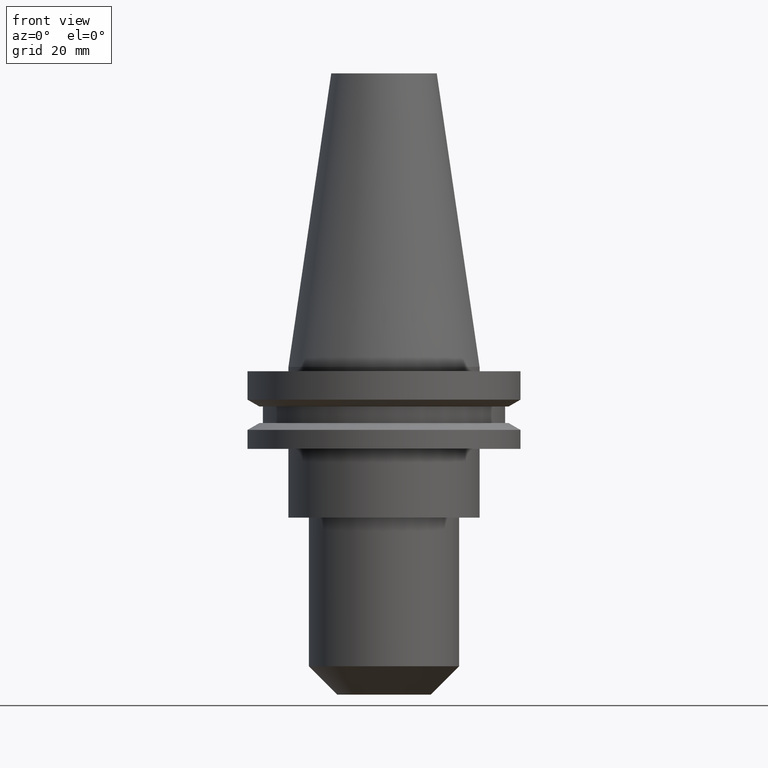
[diagram: clean part render]
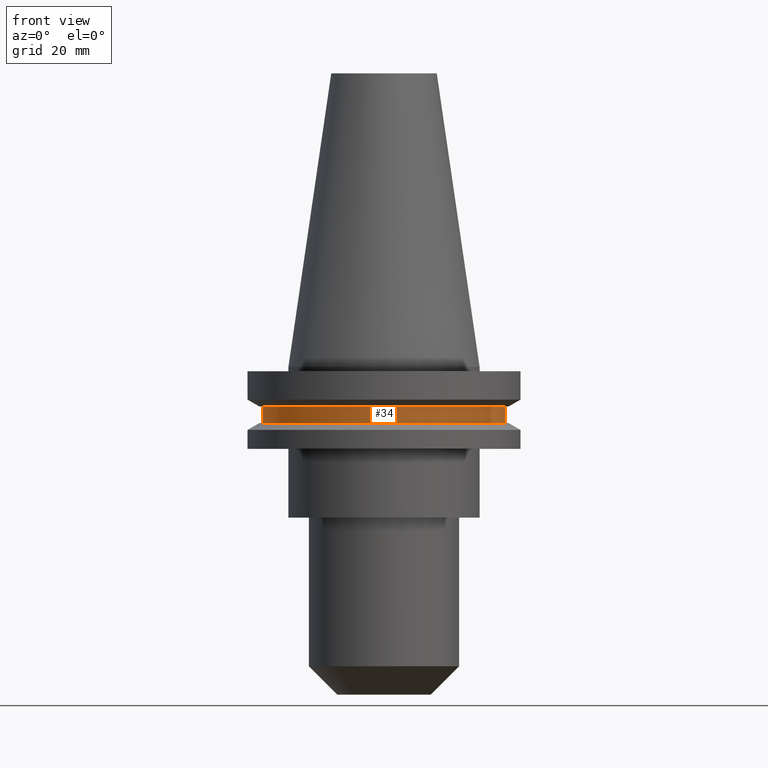
[diagram: same view with one face highlighted and labeled with its STEP entity id]
A machine part, front view. The second image highlights one B-rep face of the part: STEP entity #34.
In plain terms, the highlighted cylindrical surface (partial cylindrical patch) has radius 28.18 mm, axis along (-0, -0, 1).
Its self-contained STEP definition (entity closure, byte-faithful):
#3 = CYLINDRICAL_SURFACE ( 'NONE', #479, 28.17999999999999972 ) ;
#6 = CARTESIAN_POINT ( 'NONE',  ( 0.000000000000000000, 0.000000000000000000, 68.25000000000000000 ) ) ;
#23 = DIRECTION ( 'NONE',  ( -0.000000000000000000, -0.000000000000000000, 1.000000000000000000 ) ) ;
#28 = CARTESIAN_POINT ( 'NONE',  ( 28.17999999999999972, 0.000000000000000000, 68.25000000000000000 ) ) ;
#34 = ADVANCED_FACE ( 'NONE', ( #733 ), #3, .T. ) ;
#39 = VECTOR ( 'NONE', #23, 1000.000000000000000 ) ;
#40 = VERTEX_POINT ( 'NONE', #665 ) ;
#50 = VERTEX_POINT ( 'NONE', #527 ) ;
#78 = DIRECTION ( 'NONE',  ( 1.000000000000000000, 0.000000000000000000, 0.000000000000000000 ) ) ;
#79 = DIRECTION ( 'NONE',  ( 1.000000000000000000, 0.000000000000000000, 0.000000000000000000 ) ) ;
#134 = ORIENTED_EDGE ( 'NONE', *, *, #301, .F. ) ;
#149 = VERTEX_POINT ( 'NONE', #353 ) ;
#250 = CARTESIAN_POINT ( 'NONE',  ( -28.17999999999999972, 3.451054679997241634E-15, -13.05499999999999794 ) ) ;
#272 = CARTESIAN_POINT ( 'NONE',  ( 0.000000000000000000, 0.000000000000000000, -9.204999999999991189 ) ) ;
#301 = EDGE_CURVE ( 'NONE', #50, #149, #445, .T. ) ;
#353 = CARTESIAN_POINT ( 'NONE',  ( 28.17999999999999972, 0.000000000000000000, -9.204999999999991189 ) ) ;
#372 = DIRECTION ( 'NONE',  ( -0.000000000000000000, -0.000000000000000000, 1.000000000000000000 ) ) ;
#406 = CARTESIAN_POINT ( 'NONE',  ( 0.000000000000000000, 0.000000000000000000, -13.05499999999999794 ) ) ;
#410 = VERTEX_POINT ( 'NONE', #250 ) ;
#430 = LINE ( 'NONE', #28, #39 ) ;
#445 = CIRCLE ( 'NONE', #829, 28.17999999999999972 ) ;
#471 = DIRECTION ( 'NONE',  ( -0.000000000000000000, -0.000000000000000000, 1.000000000000000000 ) ) ;
#479 = AXIS2_PLACEMENT_3D ( 'NONE', #6, #548, #79 ) ;
#523 = ORIENTED_EDGE ( 'NONE', *, *, #563, .F. ) ;
#527 = CARTESIAN_POINT ( 'NONE',  ( -28.17999999999999972, 3.451054679997241634E-15, -9.204999999999991189 ) ) ;
#538 = ORIENTED_EDGE ( 'NONE', *, *, #586, .T. ) ;
#548 = DIRECTION ( 'NONE',  ( -0.000000000000000000, -0.000000000000000000, 1.000000000000000000 ) ) ;
#552 = VECTOR ( 'NONE', #471, 1000.000000000000000 ) ;
#563 = EDGE_CURVE ( 'NONE', #410, #50, #661, .T. ) ;
#586 = EDGE_CURVE ( 'NONE', #410, #40, #741, .T. ) ;
#595 = EDGE_LOOP ( 'NONE', ( #523, #538, #660, #134 ) ) ;
#602 = EDGE_CURVE ( 'NONE', #40, #149, #430, .T. ) ;
#605 = AXIS2_PLACEMENT_3D ( 'NONE', #406, #669, #78 ) ;
#660 = ORIENTED_EDGE ( 'NONE', *, *, #602, .T. ) ;
#661 = LINE ( 'NONE', #664, #552 ) ;
#664 = CARTESIAN_POINT ( 'NONE',  ( -28.17999999999999972, 3.451054679997241634E-15, 68.25000000000000000 ) ) ;
#665 = CARTESIAN_POINT ( 'NONE',  ( 28.17999999999999972, 0.000000000000000000, -13.05499999999999794 ) ) ;
#669 = DIRECTION ( 'NONE',  ( -0.000000000000000000, -0.000000000000000000, 1.000000000000000000 ) ) ;
#733 = FACE_OUTER_BOUND ( 'NONE', #595, .T. ) ;
#741 = CIRCLE ( 'NONE', #605, 28.17999999999999972 ) ;
#828 = DIRECTION ( 'NONE',  ( 1.000000000000000000, 0.000000000000000000, 0.000000000000000000 ) ) ;
#829 = AXIS2_PLACEMENT_3D ( 'NONE', #272, #372, #828 ) ;